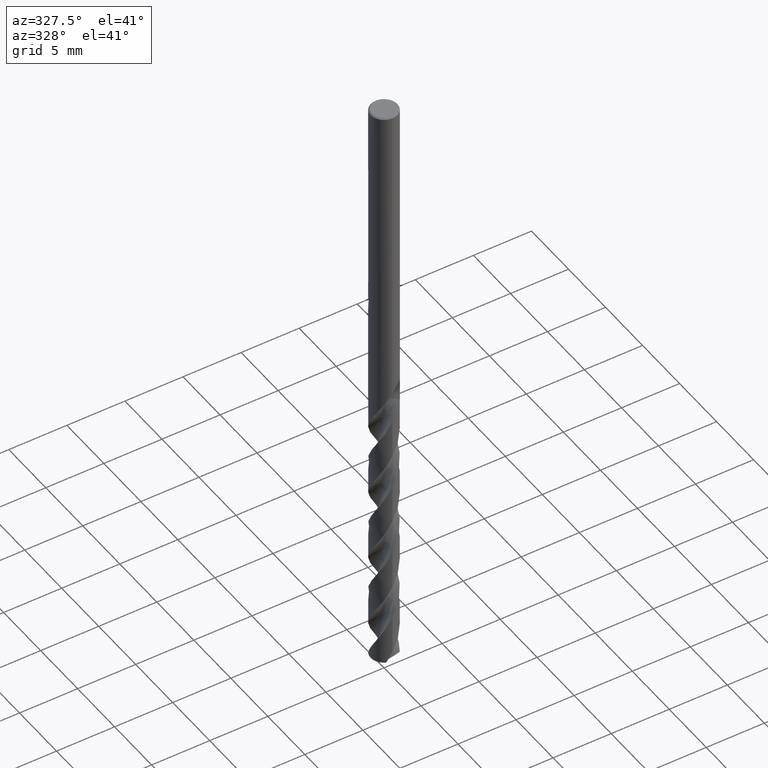
[diagram: clean part render]
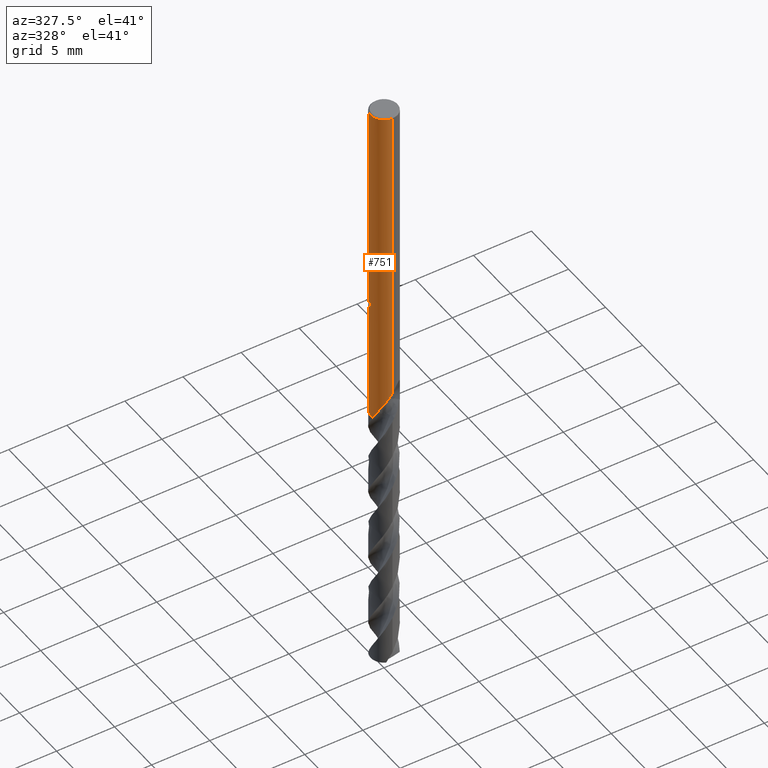
[diagram: same view with one face highlighted and labeled with its STEP entity id]
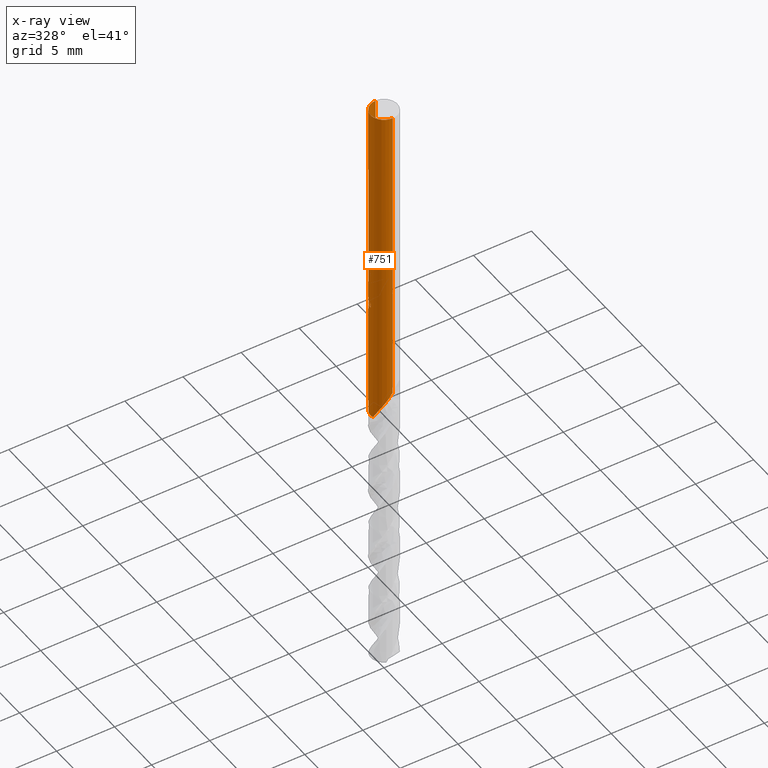
[diagram: x-ray of the same camera — body ghosted, the highlighted face saturated]
A machine part, auxiliary view. The second image highlights one B-rep face of the part: STEP entity #751.
The next image is the same camera in x-ray: the body ghosted, the highlighted face saturated — about 0% of this face is hidden behind the body in this view.
In plain terms, the highlighted cylindrical surface (edge-blend (fillet) strip) has radius 1.15 mm, axis along (-0, -0, 1).
Its self-contained STEP definition (entity closure, byte-faithful):
#311=EDGE_CURVE('',#755,#799,#870,.T.);
#317=VERTEX_POINT('',#876);
#321=EDGE_CURVE('',#489,#705,#880,.T.);
#325=EDGE_CURVE('',#589,#673,#884,.T.);
#337=EDGE_CURVE('',#505,#317,#896,.T.);
#355=VERTEX_POINT('',#915);
#381=VERTEX_POINT('',#944);
#385=EDGE_CURVE('',#485,#569,#948,.T.);
#387=EDGE_CURVE('',#467,#785,#950,.T.);
#395=EDGE_CURVE('',#673,#485,#959,.T.);
#447=EDGE_CURVE('',#355,#381,#1018,.T.);
#459=VERTEX_POINT('',#1033);
#463=VERTEX_POINT('',#1037);
#467=VERTEX_POINT('',#1041);
#485=VERTEX_POINT('',#1061);
#489=VERTEX_POINT('',#1065);
#499=EDGE_CURVE('',#463,#589,#1077,.T.);
#505=VERTEX_POINT('',#1083);
#525=EDGE_CURVE('',#381,#467,#1103,.T.);
#539=EDGE_CURVE('',#785,#505,#1119,.T.);
#541=EDGE_CURVE('',#459,#799,#1121,.T.);
#563=EDGE_CURVE('',#787,#755,#1144,.T.);
#569=VERTEX_POINT('',#1151);
#589=VERTEX_POINT('',#1172);
#597=EDGE_CURVE('',#317,#489,#1181,.T.);
#673=VERTEX_POINT('',#1266);
#705=VERTEX_POINT('',#1301);
#751=ADVANCED_FACE('',(#1349),#1350,.T.);
#753=EDGE_CURVE('',#569,#783,#1352,.T.);
#755=VERTEX_POINT('',#1354);
#763=EDGE_CURVE('',#783,#355,#1363,.T.);
#783=VERTEX_POINT('',#1386);
#785=VERTEX_POINT('',#1388);
#787=VERTEX_POINT('',#1390);
#799=VERTEX_POINT('',#1402);
#801=EDGE_CURVE('',#459,#463,#1404,.T.);
#807=EDGE_CURVE('',#705,#787,#1411,.T.);
#870=B_SPLINE_CURVE_WITH_KNOTS('',3,(#1597,#1598,#1599,#1600,#1601,#1602,#1603,#1604,#1605,#1606,#1607,#1608,#1609,#1610),.UNSPECIFIED.,.F.,.F.,(4,2,2,2,2,2,4),(0.0,0.304066214937691,0.374758521187685,0.659020230049754,1.01260083629838,1.1893005912949,1.36652072752924),.UNSPECIFIED.);
#876=CARTESIAN_POINT('',(-1.15,0.0,-18.5834874419264));
#880=LINE('',#1647,#1648);
#884=LINE('',#1653,#1654);
#896=LINE('',#1793,#1794);
#915=CARTESIAN_POINT('',(-0.562333990228013,1.00313532658074,-16.3171221986971));
#944=CARTESIAN_POINT('',(-1.0350734039088,0.501121790107613,-16.3171221986971));
#948=LINE('',#2566,#2567);
#950=LINE('',#2570,#2571);
#959=CIRCLE('',#2582,1.15);
#1018=CIRCLE('',#5151,1.15);
#1033=CARTESIAN_POINT('',(-1.12047566619127,-0.258909794085158,-29.0));
#1037=CARTESIAN_POINT('',(-0.732801415983016,-0.886285554848598,-27.7438));
#1041=CARTESIAN_POINT('',(1.17859584229481E-016,1.15,-17.5000801551881));
#1061=CARTESIAN_POINT('',(0.0,1.15,-0.100000000000001));
#1065=CARTESIAN_POINT('',(-1.44945831354929E-017,1.15,-19.0310253601033));
#1077=B_SPLINE_CURVE_WITH_KNOTS('',3,(#5897,#5898,#5899,#5900,#5901,#5902,#5903,#5904,#5905,#5906,#5907,#5908,#5909,#5910,#5911,#5912,#5913,#5914,#5915,#5916,#5917,#5918,#5919,#5920,#5921,#5922,#5923,#5924),.UNSPECIFIED.,.F.,.F.,(4,2,2,2,2,2,2,2,2,2,2,2,2,4),(0.0,0.563439165919846,0.871089012521684,1.14974253763771,1.47347122766483,1.86234301075488,2.19938498382715,2.35212041512831,2.46375142231367,2.56938701378273,2.70339206311513,2.89944689030851,3.17816187579203,3.49510523447244),.UNSPECIFIED.);
#1083=CARTESIAN_POINT('',(-1.15,0.0,-18.2798602711281));
#1103=B_SPLINE_CURVE_WITH_KNOTS('',3,(#6104,#6105,#6106,#6107,#6108,#6109,#6110,#6111,#6112,#6113,#6114,#6115,#6116,#6117,#6118,#6119,#6120,#6121,#6122,#6123,#6124,#6125),.UNSPECIFIED.,.F.,.F.,(4,2,2,2,2,2,2,2,2,2,4),(4.03395273517038,4.23246009706349,4.4309674589566,4.62947482084971,5.02648954463592,5.43484073336067,5.84319192208542,6.02743930122356,6.21168668036169,6.58018143863796,6.82479369701116),.UNSPECIFIED.);
#1119=ELLIPSE('',#6465,1.28216769684929,1.15);
#1121=CIRCLE('',#6468,1.15);
#1144=B_SPLINE_CURVE_WITH_KNOTS('',3,(#6720,#6721,#6722,#6723),.UNSPECIFIED.,.F.,.F.,(4,4),(0.0,0.660927881892513),.UNSPECIFIED.);
#1151=CARTESIAN_POINT('',(5.06214303679779E-017,1.15,-17.0232688117743));
#1172=CARTESIAN_POINT('',(3.41352972635118E-013,-1.15,-26.5213685877671));
#1181=B_SPLINE_CURVE_WITH_KNOTS('',3,(#7863,#7864,#7865,#7866,#7867,#7868,#7869,#7870,#7871,#7872,#7873,#7874,#7875,#7876,#7877,#7878,#7879,#7880,#7881,#7882,#7883),.UNSPECIFIED.,.F.,.F.,(4,3,2,2,2,2,2,2,2,4),(-0.228217566424312,0.0,0.228217566424312,0.456435132848624,0.912870265697247,1.36126580841946,1.58546357978056,1.80966135114166,2.03647935720914,2.26329736327661),.UNSPECIFIED.);
#1266=CARTESIAN_POINT('',(1.40829730689573E-016,-1.15,-0.100000000000001));
#1301=CARTESIAN_POINT('',(-3.39909682703105E-013,1.15,-26.5213685877671));
#1349=FACE_OUTER_BOUND('',#10116,.T.);
#1350=CYLINDRICAL_SURFACE('',#10117,1.15);
#1352=B_SPLINE_CURVE_WITH_KNOTS('',3,(#10120,#10121,#10122,#10123,#10124,#10125,#10126,#10127,#10128,#10129,#10130,#10131,#10132,#10133,#10134,#10135,#10136,#10137,#10138,#10139,#10140,#10141,#10142,#10143,#10144,#10145,#10146,#10147,#10148,#10149,#10150),.UNSPECIFIED.,.F.,.F.,(4,2,2,3,2,2,2,2,2,2,2,2,2,2,4),(-0.575221667439481,-0.28761083371974,-0.143805416859871,0.0,0.14380541685987,0.287610833719741,0.575221667439481,0.86960417947403,1.16398669150858,1.43600611227259,1.7080255330366,1.98638509704227,2.26474466104794,2.54310422505361,2.82146378905927),.UNSPECIFIED.);
#1354=CARTESIAN_POINT('',(-0.799338944710083,0.826775212176666,-27.7438));
#1363=B_SPLINE_CURVE_WITH_KNOTS('',3,(#10164,#10165,#10166,#10167,#10168,#10169,#10170,#10171,#10172,#10173,#10174,#10175,#10176,#10177,#10178,#10179,#10180,#10181,#10182,#10183,#10184,#10185,#10186,#10187,#10188,#10189,#10190,#10191,#10192,#10193,#10194),.UNSPECIFIED.,.F.,.F.,(4,2,2,3,2,2,2,2,2,2,2,2,2,2,4),(-0.575221667439481,-0.28761083371974,-0.143805416859871,0.0,0.14380541685987,0.287610833719741,0.575221667439481,0.86960417947403,1.16398669150858,1.43600611227259,1.7080255330366,1.98638509704227,2.26474466104794,2.54310422505361,2.82146378905927),.UNSPECIFIED.);
#1386=CARTESIAN_POINT('',(-0.486378944383045,1.04208230119354,-16.6432837483006));
#1388=CARTESIAN_POINT('',(-1.40829730689573E-016,1.15,-17.7128911336578));
#1390=CARTESIAN_POINT('',(-0.93568848780958,0.668570904078708,-27.1140827414183));
#1402=CARTESIAN_POINT('',(-0.16323486816335,1.13835599783885,-29.0));
#1404=B_SPLINE_CURVE_WITH_KNOTS('',3,(#10603,#10604,#10605,#10606,#10607,#10608,#10609,#10610,#10611,#10612),.UNSPECIFIED.,.F.,.F.,(4,2,2,2,4),(0.0,0.169695675287644,0.881624101282092,1.3275080406444,1.8251483352346),.UNSPECIFIED.);
#1411=B_SPLINE_CURVE_WITH_KNOTS('',3,(#10620,#10621,#10622,#10623,#10624,#10625,#10626,#10627,#10628,#10629,#10630,#10631,#10632,#10633,#10634,#10635,#10636,#10637,#10638,#10639,#10640,#10641,#10642,#10643,#10644,#10645,#10646,#10647),.UNSPECIFIED.,.F.,.F.,(4,2,2,2,2,2,2,2,2,2,2,2,2,4),(0.0,0.563439165919861,0.871089012521675,1.14974253763764,1.47347122766479,1.86234301075486,2.19938498382719,2.35212041512838,2.46375142231377,2.56938701378282,2.70339206311518,2.8994468903087,3.17816187579231,3.49510523447301),.UNSPECIFIED.);
#1597=CARTESIAN_POINT('',(-0.799338944710083,0.826775212176666,-27.7438));
#1598=CARTESIAN_POINT('',(-0.764877385695639,0.860093175523859,-27.8331041566065));
#1599=CARTESIAN_POINT('',(-0.727921593299791,0.891846284950391,-27.9209832156452));
#1600=CARTESIAN_POINT('',(-0.675946617457627,0.93045436922455,-28.0319377950846));
#1601=CARTESIAN_POINT('',(-0.665997724345972,0.937602530424481,-28.0527522063866));
#1602=CARTESIAN_POINT('',(-0.615236857959541,0.972847800129152,-28.1574007447853));
#1603=CARTESIAN_POINT('',(-0.572684706825986,0.998568259207802,-28.2422012556845));
#1604=CARTESIAN_POINT('',(-0.470883209542266,1.05109536975024,-28.4420714102849));
#1605=CARTESIAN_POINT('',(-0.411541943018724,1.07575132752959,-28.5541591142279));
#1606=CARTESIAN_POINT('',(-0.3199946926957,1.10504717879731,-28.7212215632049));
#1607=CARTESIAN_POINT('',(-0.289092535042944,1.11353117607276,-28.7768145697055));
#1608=CARTESIAN_POINT('',(-0.226564234057298,1.12791882456994,-28.8883105160198));
#1609=CARTESIAN_POINT('',(-0.194989964630234,1.13380246713745,-28.944153367651));
#1610=CARTESIAN_POINT('',(-0.163234868163372,1.13835599783885,-29.0));
#1647=CARTESIAN_POINT('',(-1.40829730689574E-016,1.15,-27.5));
#1648=VECTOR('',#11302,1.0);
#1653=CARTESIAN_POINT('',(1.40829730689573E-016,-1.15,-27.5));
#1654=VECTOR('',#11303,1.0);
#1793=CARTESIAN_POINT('',(-1.15,0.0,-18.4379151596052));
#1794=VECTOR('',#11307,1.0);
#2566=CARTESIAN_POINT('',(-1.40829730689574E-016,1.15,-27.5));
#2567=VECTOR('',#11376,1.0);
#2570=CARTESIAN_POINT('',(-1.40829730689574E-016,1.15,-27.5));
#2571=VECTOR('',#11377,1.0);
#2582=AXIS2_PLACEMENT_3D('',#11389,#11390,#11391);
#5151=AXIS2_PLACEMENT_3D('',#11465,#11466,#11467);
#5897=CARTESIAN_POINT('',(-0.732801415983016,-0.886285554848597,-27.7438));
#5898=CARTESIAN_POINT('',(-0.656942936783975,-0.949007101721683,-27.5838461240386));
#5899=CARTESIAN_POINT('',(-0.569722726137768,-1.00476222410261,-27.4347177335096));
#5900=CARTESIAN_POINT('',(-0.417636612275422,-1.0731017437702,-27.1855883632487));
#5901=CARTESIAN_POINT('',(-0.362909028770127,-1.09276038604792,-27.0979364810499));
#5902=CARTESIAN_POINT('',(-0.256963323300359,-1.12214092837316,-26.9282650177729));
#5903=CARTESIAN_POINT('',(-0.206218264168661,-1.1325210078618,-26.8470363396697));
#5904=CARTESIAN_POINT('',(-0.0963765610101797,-1.14750205881436,-26.671966831078));
#5905=CARTESIAN_POINT('',(-0.0363624247649631,-1.15101921641794,-26.5767556522682));
#5906=CARTESIAN_POINT('',(0.0969135000233252,-1.14821588944496,-26.3730676135129));
#5907=CARTESIAN_POINT('',(0.175932608102415,-1.13954503588752,-26.2571669138973));
#5908=CARTESIAN_POINT('',(0.328310770770767,-1.10452787602426,-26.0660546034527));
#5909=CARTESIAN_POINT('',(0.412615579747785,-1.07784918322546,-25.9727991903961));
#5910=CARTESIAN_POINT('',(0.540209987272343,-1.01618217974311,-25.8854750233789));
#5911=CARTESIAN_POINT('',(0.58244450076404,-0.992901511919924,-25.8638937624332));
#5912=CARTESIAN_POINT('',(0.656449091094911,-0.944966031406713,-25.8473154553765));
#5913=CARTESIAN_POINT('',(0.686802534663058,-0.923135848315933,-25.8470058808927));
#5914=CARTESIAN_POINT('',(0.743337466652864,-0.878170219512602,-25.8615152805996));
#5915=CARTESIAN_POINT('',(0.768063026855961,-0.856452714185138,-25.8751191499751));
#5916=CARTESIAN_POINT('',(0.818379268670271,-0.808860489833656,-25.9176841093519));
#5917=CARTESIAN_POINT('',(0.841657840373477,-0.784196998507467,-25.9491106842274));
#5918=CARTESIAN_POINT('',(0.88933988416031,-0.73034244796042,-26.0351664182505));
#5919=CARTESIAN_POINT('',(0.91213094992704,-0.701014784640784,-26.0989943483622));
#5920=CARTESIAN_POINT('',(0.954988710946624,-0.642125183707774,-26.2775777843477));
#5921=CARTESIAN_POINT('',(0.970482787846634,-0.617041023352546,-26.4047625005414));
#5922=CARTESIAN_POINT('',(0.980389669721945,-0.601194624144245,-26.7088383268387));
#5923=CARTESIAN_POINT('',(0.9733699962284,-0.615834308131,-26.8997631252645));
#5924=CARTESIAN_POINT('',(0.93568848780958,-0.668570904078704,-27.1140827414183));
#6104=CARTESIAN_POINT('',(-1.01917647247893,0.532709412292857,-16.1327955712264));
#6105=CARTESIAN_POINT('',(-1.02956810711604,0.512828199209498,-16.1954727724197));
#6106=CARTESIAN_POINT('',(-1.03510901790186,0.501048222288272,-16.2601327401018));
#6107=CARTESIAN_POINT('',(-1.03510901790186,0.501048222288272,-16.3924709813638));
#6108=CARTESIAN_POINT('',(-1.02956810711604,0.512828199209498,-16.4571309490458));
#6109=CARTESIAN_POINT('',(-1.00878483784182,0.552590625376214,-16.5824853514325));
#6110=CARTESIAN_POINT('',(-0.993531805623971,0.580305290807278,-16.6432628005394));
#6111=CARTESIAN_POINT('',(-0.934707728014569,0.673988077784024,-16.8189940659751));
#6112=CARTESIAN_POINT('',(-0.877282589459281,0.749539884503448,-16.9276402356154));
#6113=CARTESIAN_POINT('',(-0.741203227030176,0.884629919024295,-17.1155267439953));
#6114=CARTESIAN_POINT('',(-0.650431340507889,0.956274897802892,-17.2094401346108));
#6115=CARTESIAN_POINT('',(-0.434270642914829,1.07188229708089,-17.3647471211947));
#6116=CARTESIAN_POINT('',(-0.308603785499033,1.11552943935196,-17.4259880891472));
#6117=CARTESIAN_POINT('',(-0.120923782443349,1.14514944541666,-17.4800075381929));
#6118=CARTESIAN_POINT('',(-0.0588474970550895,1.15024433921423,-17.4929052888268));
#6119=CARTESIAN_POINT('',(0.0680383340085443,1.1497372973464,-17.5083952817303));
#6120=CARTESIAN_POINT('',(0.132847840268379,1.14412770386451,-17.5109875952575));
#6121=CARTESIAN_POINT('',(0.323879141880281,1.11099473440115,-17.5031387724484));
#6122=CARTESIAN_POINT('',(0.446870785735052,1.06607477620706,-17.4761945335931));
#6123=CARTESIAN_POINT('',(0.617981085984189,0.972954375470626,-17.4144163291456));
#6124=CARTESIAN_POINT('',(0.686621261468504,0.926078771773024,-17.3820440609251));
#6125=CARTESIAN_POINT('',(0.748180090869607,0.873342173278233,-17.3458017989443));
#6465=AXIS2_PLACEMENT_3D('',#11557,#11558,#11559);
#6468=AXIS2_PLACEMENT_3D('',#11560,#11561,#11562);
#6720=CARTESIAN_POINT('',(-0.935688487862201,0.668570904005067,-27.1140827414472));
#6721=CARTESIAN_POINT('',(-0.898613435857908,0.720458742885722,-27.3249601411423));
#6722=CARTESIAN_POINT('',(-0.853928088554958,0.773997591378492,-27.5370924635053));
#6723=CARTESIAN_POINT('',(-0.799338944710083,0.826775212176666,-27.7438));
#7863=CARTESIAN_POINT('',(-1.12705664151268,-0.228567991683332,-18.6048634338891));
#7864=CARTESIAN_POINT('',(-1.14235495790285,-0.153132799507581,-18.5908829008319));
#7865=CARTESIAN_POINT('',(-1.15,-0.0760725221414372,-18.5834874419264));
#7866=CARTESIAN_POINT('',(-1.15,0.0,-18.5834874419264));
#7867=CARTESIAN_POINT('',(-1.15,0.0760725221414373,-18.5834874419264));
#7868=CARTESIAN_POINT('',(-1.14235495790285,0.153132799507581,-18.5908829008319));
#7869=CARTESIAN_POINT('',(-1.11175832512252,0.304003183859083,-18.6188439669463));
#7870=CARTESIAN_POINT('',(-1.08882572246063,0.377835453188677,-18.6393106748477));
#7871=CARTESIAN_POINT('',(-0.999813923264829,0.588283644190979,-18.712074817082));
#7872=CARTESIAN_POINT('',(-0.912512328184552,0.714094720771525,-18.7751769658557));
#7873=CARTESIAN_POINT('',(-0.713468847801753,0.9126171327666,-18.8844439452781));
#7874=CARTESIAN_POINT('',(-0.587602816682703,1.00030784078029,-18.9391834795055));
#7875=CARTESIAN_POINT('',(-0.376193705996263,1.08941569015347,-18.9953658145462));
#7876=CARTESIAN_POINT('',(-0.301988635540002,1.1123005726337,-19.0099168439879));
#7877=CARTESIAN_POINT('',(-0.151254358466641,1.14259871300721,-19.0284033948462));
#7878=CARTESIAN_POINT('',(-0.074721257879001,1.15,-19.0323267812114));
#7879=CARTESIAN_POINT('',(0.0755945370022024,1.15,-19.0297087290816));
#7880=CARTESIAN_POINT('',(0.152786320077232,1.1424282315386,-19.0229872439299));
#7881=CARTESIAN_POINT('',(0.304435523841718,1.11166763719533,-18.998756293185));
#7882=CARTESIAN_POINT('',(0.37889762135076,1.08849262831913,-18.9812585606961));
#7883=CARTESIAN_POINT('',(0.449476646832189,1.05852290667349,-18.959597917736));
#10116=EDGE_LOOP('',(#11764,#11765,#11766,#11767,#11768,#11769,#11770,#11771,#11772,#11773,#11774,#11775,#11776,#11777,#11778,#11779,#11780,#11781));
#10117=AXIS2_PLACEMENT_3D('',#11782,#11783,#11784);
#10120=CARTESIAN_POINT('',(0.670878545186431,0.934035319251118,-15.8194243925232));
#10121=CARTESIAN_POINT('',(0.730741344863012,0.891038371351962,-15.8807335914425));
#10122=CARTESIAN_POINT('',(0.783362766728711,0.843500111511961,-15.9575280504497));
#10123=CARTESIAN_POINT('',(0.837534354122617,0.788478712170001,-16.0867179962754));
#10124=CARTESIAN_POINT('',(0.851618925815651,0.772948447072476,-16.1321650019841));
#10125=CARTESIAN_POINT('',(0.870557586031585,0.751554115090569,-16.2256492005173));
#10126=CARTESIAN_POINT('',(0.875400981188567,0.745770153689523,-16.2737068736335));
#10127=CARTESIAN_POINT('',(0.875400981188567,0.745770153689523,-16.3216420125868));
#10128=CARTESIAN_POINT('',(0.875400981188567,0.745770153689523,-16.3695771515401));
#10129=CARTESIAN_POINT('',(0.870557586031585,0.751554115090569,-16.4176348246563));
#10130=CARTESIAN_POINT('',(0.851618925815651,0.772948447072477,-16.5111190231894));
#10131=CARTESIAN_POINT('',(0.837534354122617,0.788478712170001,-16.5565660288981));
#10132=CARTESIAN_POINT('',(0.78336276672871,0.843500111511962,-16.6857559747239));
#10133=CARTESIAN_POINT('',(0.730741344863013,0.891038371351962,-16.7625504337311));
#10134=CARTESIAN_POINT('',(0.609606300611021,0.978044612533535,-16.8866123313413));
#10135=CARTESIAN_POINT('',(0.53122723063669,1.02448822349018,-16.9427457702338));
#10136=CARTESIAN_POINT('',(0.353396691829169,1.09858514212891,-17.0197915047214));
#10137=CARTESIAN_POINT('',(0.253740695304578,1.12594167992391,-17.0405166027747));
#10138=CARTESIAN_POINT('',(0.0666970782335198,1.15163931772007,-17.0405166027747));
#10139=CARTESIAN_POINT('',(-0.0293911437348981,1.15302235328924,-17.0225508986627));
#10140=CARTESIAN_POINT('',(-0.205378230070101,1.13496439079894,-16.9500237611274));
#10141=CARTESIAN_POINT('',(-0.285352029498634,1.11599220926285,-16.8955282226055));
#10142=CARTESIAN_POINT('',(-0.412740381954892,1.07550713046307,-16.7698675148097));
#10143=CARTESIAN_POINT('',(-0.468548760238635,1.05104595572453,-16.6895391146912));
#10144=CARTESIAN_POINT('',(-0.543373290109843,1.01438711364003,-16.5119244508748));
#10145=CARTESIAN_POINT('',(-0.562348199187247,1.00312736124126,-16.414428533922));
#10146=CARTESIAN_POINT('',(-0.562348199187247,1.00312736124126,-16.2288554912516));
#10147=CARTESIAN_POINT('',(-0.543373290109843,1.01438711364003,-16.1313595742988));
#10148=CARTESIAN_POINT('',(-0.468548760238635,1.05104595572453,-15.9537449104824));
#10149=CARTESIAN_POINT('',(-0.412740381954892,1.07550713046307,-15.8734165103639));
#10150=CARTESIAN_POINT('',(-0.348312474584913,1.09598285572747,-15.8098623762079));
#10164=CARTESIAN_POINT('',(0.670878545186431,0.934035319251118,-15.8194243925232));
#10165=CARTESIAN_POINT('',(0.730741344863012,0.891038371351962,-15.8807335914425));
#10166=CARTESIAN_POINT('',(0.783362766728711,0.843500111511961,-15.9575280504497));
#10167=CARTESIAN_POINT('',(0.837534354122617,0.788478712170001,-16.0867179962754));
#10168=CARTESIAN_POINT('',(0.851618925815651,0.772948447072476,-16.1321650019841));
#10169=CARTESIAN_POINT('',(0.870557586031585,0.751554115090569,-16.2256492005173));
#10170=CARTESIAN_POINT('',(0.875400981188567,0.745770153689523,-16.2737068736335));
#10171=CARTESIAN_POINT('',(0.875400981188567,0.745770153689523,-16.3216420125868));
#10172=CARTESIAN_POINT('',(0.875400981188567,0.745770153689523,-16.3695771515401));
#10173=CARTESIAN_POINT('',(0.870557586031585,0.751554115090569,-16.4176348246563));
#10174=CARTESIAN_POINT('',(0.851618925815651,0.772948447072477,-16.5111190231894));
#10175=CARTESIAN_POINT('',(0.837534354122617,0.788478712170001,-16.5565660288981));
#10176=CARTESIAN_POINT('',(0.78336276672871,0.843500111511962,-16.6857559747239));
#10177=CARTESIAN_POINT('',(0.730741344863013,0.891038371351962,-16.7625504337311));
#10178=CARTESIAN_POINT('',(0.609606300611021,0.978044612533535,-16.8866123313413));
#10179=CARTESIAN_POINT('',(0.53122723063669,1.02448822349018,-16.9427457702338));
#10180=CARTESIAN_POINT('',(0.353396691829169,1.09858514212891,-17.0197915047214));
#10181=CARTESIAN_POINT('',(0.253740695304578,1.12594167992391,-17.0405166027747));
#10182=CARTESIAN_POINT('',(0.0666970782335198,1.15163931772007,-17.0405166027747));
#10183=CARTESIAN_POINT('',(-0.0293911437348981,1.15302235328924,-17.0225508986627));
#10184=CARTESIAN_POINT('',(-0.205378230070101,1.13496439079894,-16.9500237611274));
#10185=CARTESIAN_POINT('',(-0.285352029498634,1.11599220926285,-16.8955282226055));
#10186=CARTESIAN_POINT('',(-0.412740381954892,1.07550713046307,-16.7698675148097));
#10187=CARTESIAN_POINT('',(-0.468548760238635,1.05104595572453,-16.6895391146912));
#10188=CARTESIAN_POINT('',(-0.543373290109843,1.01438711364003,-16.5119244508748));
#10189=CARTESIAN_POINT('',(-0.562348199187247,1.00312736124126,-16.414428533922));
#10190=CARTESIAN_POINT('',(-0.562348199187247,1.00312736124126,-16.2288554912516));
#10191=CARTESIAN_POINT('',(-0.543373290109843,1.01438711364003,-16.1313595742988));
#10192=CARTESIAN_POINT('',(-0.468548760238635,1.05104595572453,-15.9537449104824));
#10193=CARTESIAN_POINT('',(-0.412740381954892,1.07550713046307,-15.8734165103639));
#10194=CARTESIAN_POINT('',(-0.348312474584913,1.09598285572747,-15.8098623762079));
#10603=CARTESIAN_POINT('',(-1.12047566619128,-0.258909794085155,-29.0));
#10604=CARTESIAN_POINT('',(-1.11415213662203,-0.286275931514682,-28.9509007924084));
#10605=CARTESIAN_POINT('',(-1.10683796646252,-0.313374618212078,-28.9016230564239));
#10606=CARTESIAN_POINT('',(-1.063521188146,-0.453206948381261,-28.6463318320348));
#10607=CARTESIAN_POINT('',(-1.01548050201393,-0.548249190326044,-28.4744437370818));
#10608=CARTESIAN_POINT('',(-0.929815595125054,-0.679398449475832,-28.1881839538457));
#10609=CARTESIAN_POINT('',(-0.908831383966599,-0.706616495804872,-28.1121970711045));
#10610=CARTESIAN_POINT('',(-0.836367391535102,-0.791488543529575,-27.9231895667575));
#10611=CARTESIAN_POINT('',(-0.79019501059192,-0.838831202052625,-27.8317853788412));
#10612=CARTESIAN_POINT('',(-0.732801415983016,-0.886285554848598,-27.7438));
#10620=CARTESIAN_POINT('',(0.732801415983015,0.886285554848598,-27.7438));
#10621=CARTESIAN_POINT('',(0.656942936783973,0.949007101721685,-27.5838461240386));
#10622=CARTESIAN_POINT('',(0.569722726137763,1.00476222410261,-27.4347177335096));
#10623=CARTESIAN_POINT('',(0.417636612275431,1.07310174377019,-27.1855883632487));
#10624=CARTESIAN_POINT('',(0.362909028770144,1.09276038604791,-27.0979364810499));
#10625=CARTESIAN_POINT('',(0.256963323300352,1.12214092837316,-26.9282650177729));
#10626=CARTESIAN_POINT('',(0.206218264168644,1.1325210078618,-26.8470363396697));
#10627=CARTESIAN_POINT('',(0.0963765610101799,1.14750205881436,-26.671966831078));
#10628=CARTESIAN_POINT('',(0.0363624247649638,1.15101921641794,-26.5767556522682));
#10629=CARTESIAN_POINT('',(-0.0969135000233221,1.14821588944496,-26.3730676135129));
#10630=CARTESIAN_POINT('',(-0.175932608102413,1.13954503588752,-26.2571669138974));
#10631=CARTESIAN_POINT('',(-0.328310770770776,1.10452787602426,-26.0660546034527));
#10632=CARTESIAN_POINT('',(-0.412615579747787,1.07784918322546,-25.9727991903961));
#10633=CARTESIAN_POINT('',(-0.540209987272341,1.01618217974311,-25.8854750233789));
#10634=CARTESIAN_POINT('',(-0.582444500764039,0.992901511919926,-25.8638937624332));
#10635=CARTESIAN_POINT('',(-0.656449091094912,0.944966031406713,-25.8473154553765));
#10636=CARTESIAN_POINT('',(-0.686802534663058,0.923135848315932,-25.8470058808927));
#10637=CARTESIAN_POINT('',(-0.743337466652858,0.878170219512606,-25.8615152805996));
#10638=CARTESIAN_POINT('',(-0.768063026855951,0.856452714185148,-25.8751191499751));
#10639=CARTESIAN_POINT('',(-0.818379268670275,0.808860489833653,-25.9176841093519));
#10640=CARTESIAN_POINT('',(-0.841657840373484,0.784196998507459,-25.9491106842274));
#10641=CARTESIAN_POINT('',(-0.889339884160327,0.730342447960399,-26.0351664182506));
#10642=CARTESIAN_POINT('',(-0.912130949927052,0.701014784640768,-26.0989943483623));
#10643=CARTESIAN_POINT('',(-0.954988710946596,0.642125183707812,-26.2775777843476));
#10644=CARTESIAN_POINT('',(-0.970482787846629,0.617041023352553,-26.4047625005413));
#10645=CARTESIAN_POINT('',(-0.980389669721952,0.601194624144233,-26.7088383268389));
#10646=CARTESIAN_POINT('',(-0.973369996228356,0.615834308131062,-26.8997631252647));
#10647=CARTESIAN_POINT('',(-0.935688487809578,0.668570904078707,-27.1140827414183));
#11302=DIRECTION('',(0.0,0.0,-1.0));
#11303=DIRECTION('',(-0.0,-0.0,1.0));
#11307=DIRECTION('',(0.0,0.0,-1.0));
#11376=DIRECTION('',(0.0,0.0,-1.0));
#11377=DIRECTION('',(0.0,0.0,-1.0));
#11389=CARTESIAN_POINT('',(0.0,0.0,-0.100000000000001));
#11390=DIRECTION('',(0.0,0.0,-1.0));
#11391=DIRECTION('',(0.0,1.0,0.0));
#11465=CARTESIAN_POINT('',(0.0,0.0,-16.3171221986971));
#11466=DIRECTION('',(0.0,-0.0,1.0));
#11467=DIRECTION('',(0.0,1.0,0.0));
#11557=CARTESIAN_POINT('',(0.0,0.0,-17.7128911336578));
#11558=DIRECTION('',(-0.442195774284071,0.0,0.896918556617774));
#11559=DIRECTION('',(0.896918556617774,-0.0,0.442195774284071));
#11560=CARTESIAN_POINT('',(0.0,0.0,-29.0));
#11561=DIRECTION('',(0.0,0.0,-1.0));
#11562=DIRECTION('',(0.0,1.0,0.0));
#11764=ORIENTED_EDGE('',*,*,#385,.T.);
#11765=ORIENTED_EDGE('',*,*,#753,.T.);
#11766=ORIENTED_EDGE('',*,*,#763,.T.);
#11767=ORIENTED_EDGE('',*,*,#447,.T.);
#11768=ORIENTED_EDGE('',*,*,#525,.T.);
#11769=ORIENTED_EDGE('',*,*,#387,.T.);
#11770=ORIENTED_EDGE('',*,*,#539,.T.);
#11771=ORIENTED_EDGE('',*,*,#337,.T.);
#11772=ORIENTED_EDGE('',*,*,#597,.T.);
#11773=ORIENTED_EDGE('',*,*,#321,.T.);
#11774=ORIENTED_EDGE('',*,*,#807,.T.);
#11775=ORIENTED_EDGE('',*,*,#563,.T.);
#11776=ORIENTED_EDGE('',*,*,#311,.T.);
#11777=ORIENTED_EDGE('',*,*,#541,.F.);
#11778=ORIENTED_EDGE('',*,*,#801,.T.);
#11779=ORIENTED_EDGE('',*,*,#499,.T.);
#11780=ORIENTED_EDGE('',*,*,#325,.T.);
#11781=ORIENTED_EDGE('',*,*,#395,.T.);
#11782=CARTESIAN_POINT('',(0.0,0.0,-27.5));
#11783=DIRECTION('',(-0.0,-0.0,1.0));
#11784=DIRECTION('',(0.0,1.0,0.0));